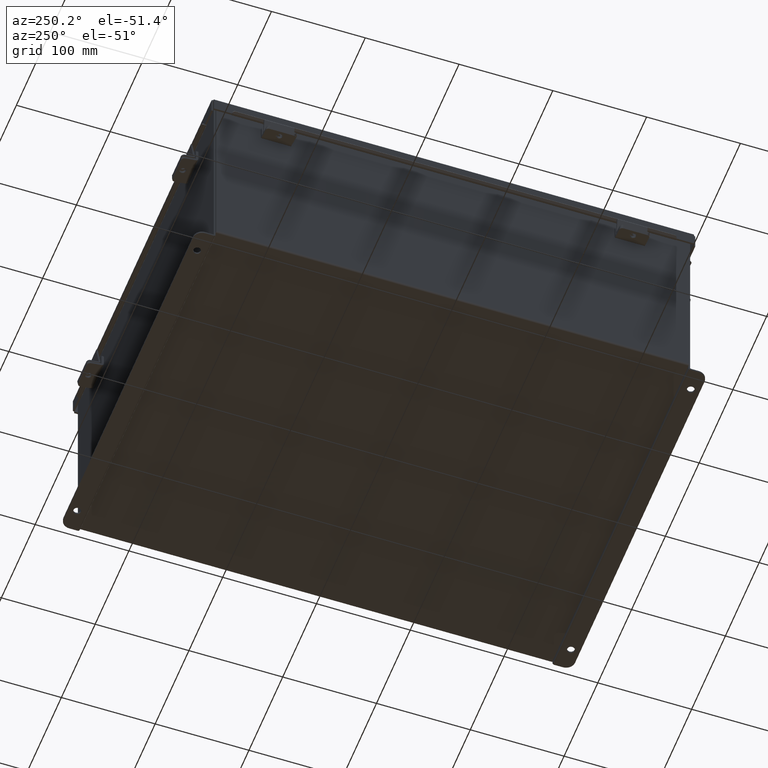
[diagram: clean part render]
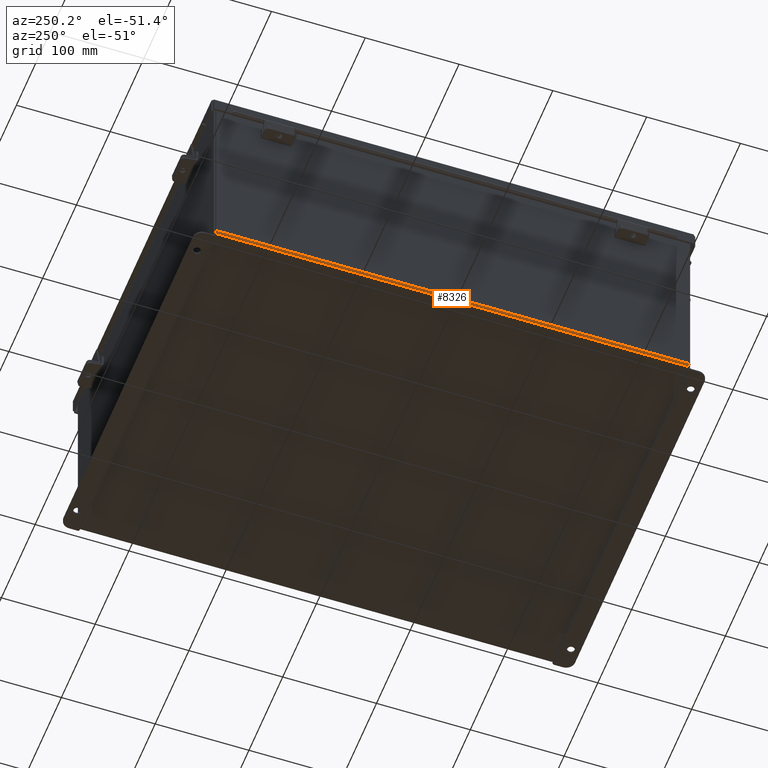
[diagram: same view with one face highlighted and labeled with its STEP entity id]
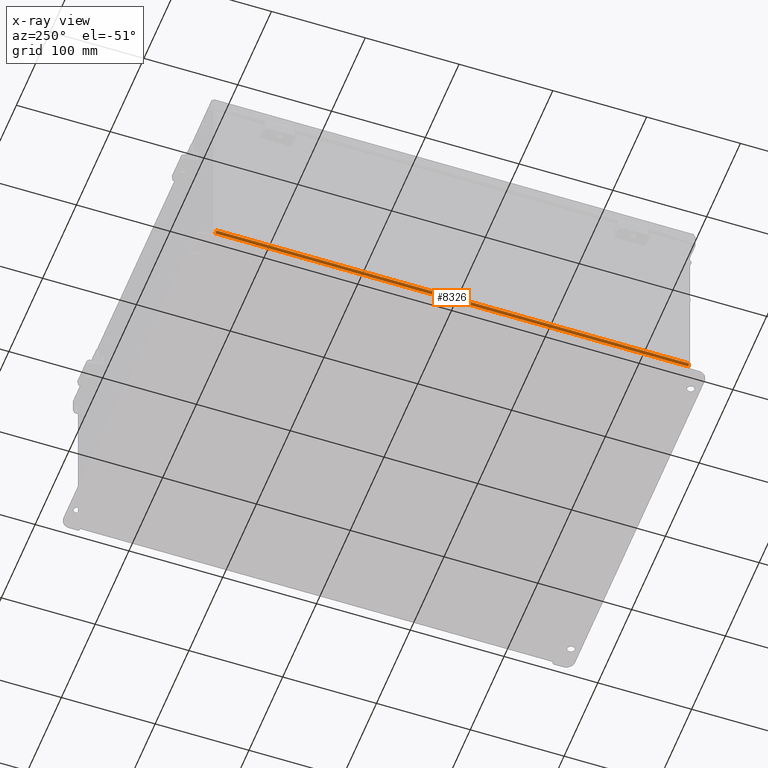
[diagram: x-ray of the same camera — body ghosted, the highlighted face saturated]
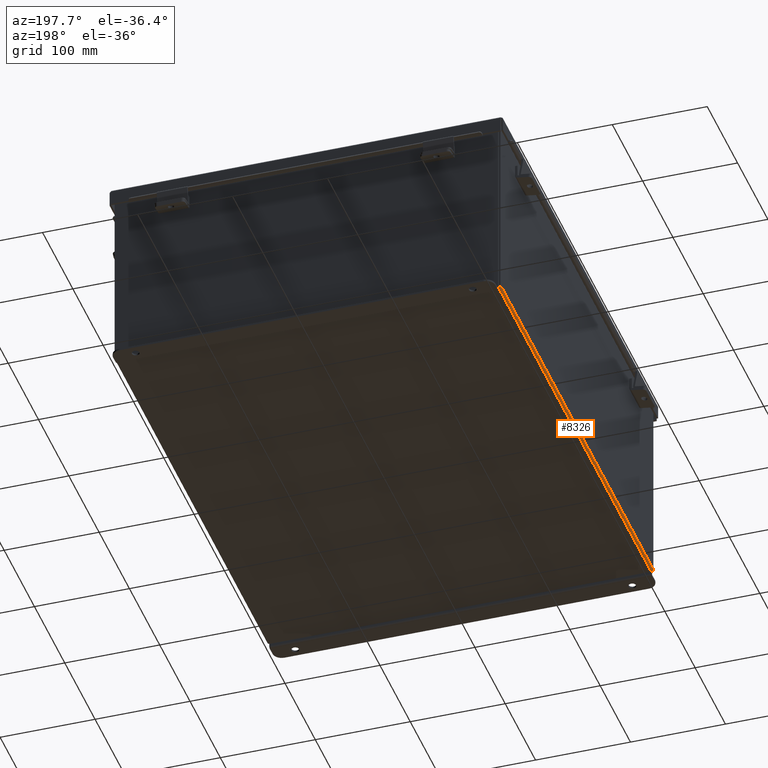
[diagram: same view with one face highlighted and labeled with its STEP entity id]
A machine part, auxiliary view. The second image highlights one B-rep face of the part: STEP entity #8326.
The next image is the same camera in x-ray: the body ghosted, the highlighted face saturated — about 0% of this face is hidden behind the body in this view.
A second angle (auxiliary view) of the same face is appended — the face is thin or edge-on in the first view.
In plain terms, the highlighted cylindrical surface (edge-blend (fillet) strip) has radius 2.2276 mm, axis along (0, -1, 0).
Its self-contained STEP definition (entity closure, byte-faithful):
#220 = DIRECTION ( 'NONE',  ( 0.0000000000000000000, 0.0000000000000000000, -1.000000000000000000 ) ) ;
#332 = LINE ( 'NONE', #4924, #6329 ) ;
#339 = LINE ( 'NONE', #5111, #5635 ) ;
#381 = VERTEX_POINT ( 'NONE', #850 ) ;
#850 = CARTESIAN_POINT ( 'NONE',  ( -7.912299999999996600, -9.925299999999996500, -0.07469999999999994700 ) ) ;
#1098 = ORIENTED_EDGE ( 'NONE', *, *, #2250, .F. ) ;
#1145 = EDGE_LOOP ( 'NONE', ( #1098, #4578, #5378, #5805 ) ) ;
#1238 = CARTESIAN_POINT ( 'NONE',  ( -7.912299999999996600, -9.925299999999998200, 0.01300000000000015000 ) ) ;
#1774 = DIRECTION ( 'NONE',  ( 0.0000000000000000000, -1.000000000000000000, 0.0000000000000000000 ) ) ;
#2250 = EDGE_CURVE ( 'NONE', #381, #3054, #339, .T. ) ;
#2690 = EDGE_CURVE ( 'NONE', #6158, #381, #3662, .T. ) ;
#2715 = DIRECTION ( 'NONE',  ( -1.000000000000000000, 0.0000000000000000000, -3.480030137311043200E-015 ) ) ;
#3054 = VERTEX_POINT ( 'NONE', #7158 ) ;
#3302 = CARTESIAN_POINT ( 'NONE',  ( -7.999999999999996400, 9.925299999999998200, 0.01299999999999984300 ) ) ;
#3358 = CYLINDRICAL_SURFACE ( 'NONE', #7746, 0.08770000000000026400 ) ;
#3451 = FACE_OUTER_BOUND ( 'NONE', #1145, .T. ) ;
#3662 = CIRCLE ( 'NONE', #9114, 0.08770000000000009700 ) ;
#4578 = ORIENTED_EDGE ( 'NONE', *, *, #2690, .F. ) ;
#4685 = DIRECTION ( 'NONE',  ( -0.0000000000000000000, 1.000000000000000000, -0.0000000000000000000 ) ) ;
#4687 = DIRECTION ( 'NONE',  ( -0.0000000000000000000, 1.000000000000000000, -0.0000000000000000000 ) ) ;
#4924 = CARTESIAN_POINT ( 'NONE',  ( -7.999999999999996400, 9.925299999999998200, 0.01299999999999984300 ) ) ;
#5017 = EDGE_CURVE ( 'NONE', #6158, #6772, #332, .T. ) ;
#5111 = CARTESIAN_POINT ( 'NONE',  ( -7.912299999999996600, -9.925299999999998200, -0.07469999999999994700 ) ) ;
#5221 = CARTESIAN_POINT ( 'NONE',  ( -7.912299999999996600, -9.925299999999996500, 0.01300000000000015000 ) ) ;
#5378 = ORIENTED_EDGE ( 'NONE', *, *, #5017, .T. ) ;
#5635 = VECTOR ( 'NONE', #6709, 39.37007874015748100 ) ;
#5805 = ORIENTED_EDGE ( 'NONE', *, *, #9449, .F. ) ;
#6158 = VERTEX_POINT ( 'NONE', #6929 ) ;
#6329 = VECTOR ( 'NONE', #4685, 39.37007874015748100 ) ;
#6516 = DIRECTION ( 'NONE',  ( 0.0000000000000000000, -1.000000000000000000, 0.0000000000000000000 ) ) ;
#6709 = DIRECTION ( 'NONE',  ( -0.0000000000000000000, 1.000000000000000000, -0.0000000000000000000 ) ) ;
#6772 = VERTEX_POINT ( 'NONE', #3302 ) ;
#6929 = CARTESIAN_POINT ( 'NONE',  ( -7.999999999999996400, -9.925299999999996500, 0.01299999999999984300 ) ) ;
#7158 = CARTESIAN_POINT ( 'NONE',  ( -7.912299999999996600, 9.925299999999998200, -0.07470000000000000300 ) ) ;
#7594 = DIRECTION ( 'NONE',  ( 0.0000000000000000000, 0.0000000000000000000, -1.000000000000000000 ) ) ;
#7681 = AXIS2_PLACEMENT_3D ( 'NONE', #9356, #4687, #220 ) ;
#7746 = AXIS2_PLACEMENT_3D ( 'NONE', #1238, #6516, #2715 ) ;
#8326 = ADVANCED_FACE ( 'NONE', ( #3451 ), #3358, .T. ) ;
#8584 = CIRCLE ( 'NONE', #7681, 0.08770000000000009700 ) ;
#9114 = AXIS2_PLACEMENT_3D ( 'NONE', #5221, #1774, #7594 ) ;
#9356 = CARTESIAN_POINT ( 'NONE',  ( -7.912299999999996600, 9.925299999999998200, 0.01300000000000015000 ) ) ;
#9449 = EDGE_CURVE ( 'NONE', #3054, #6772, #8584, .T. ) ;